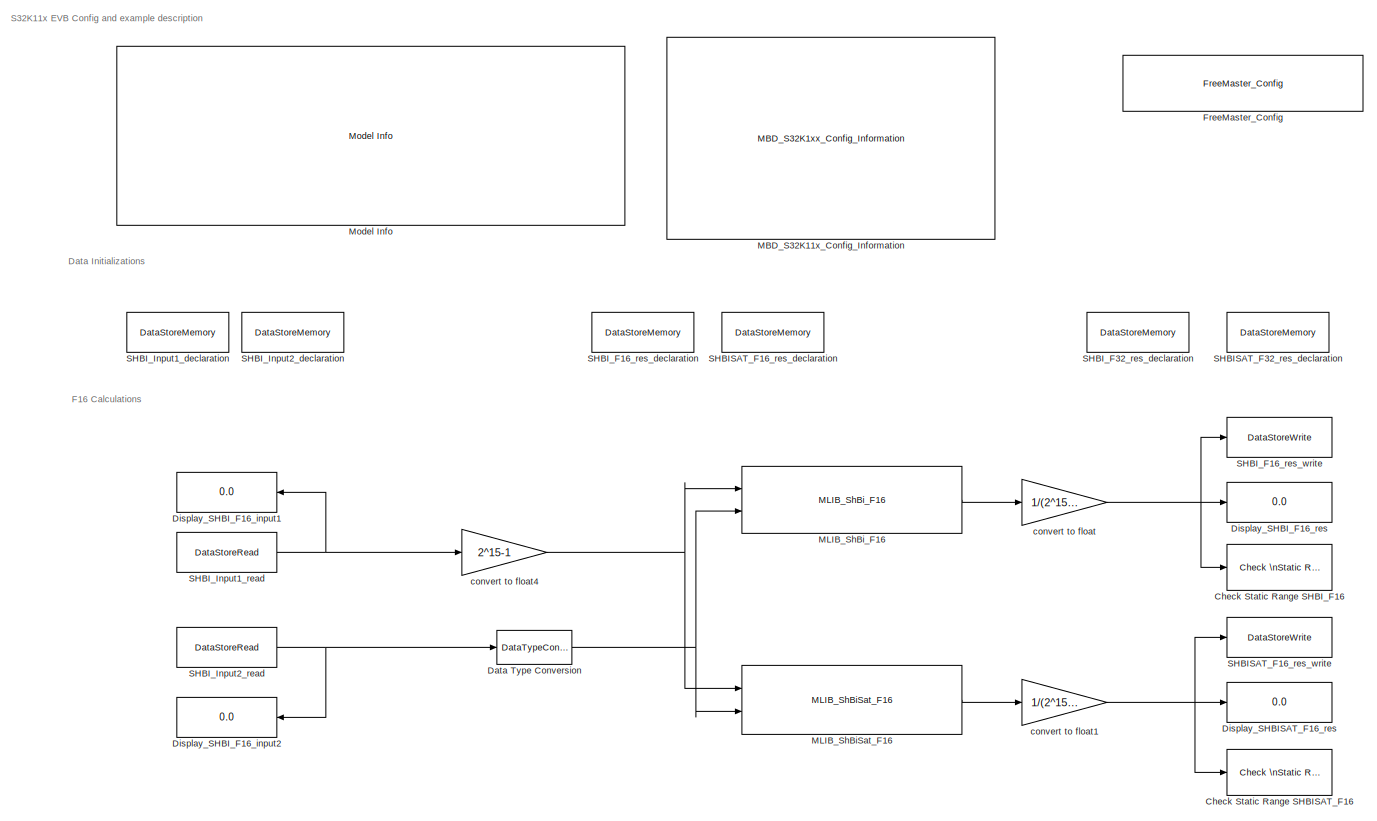
[diagram: root canvas - part 1/2, full width, middle band]
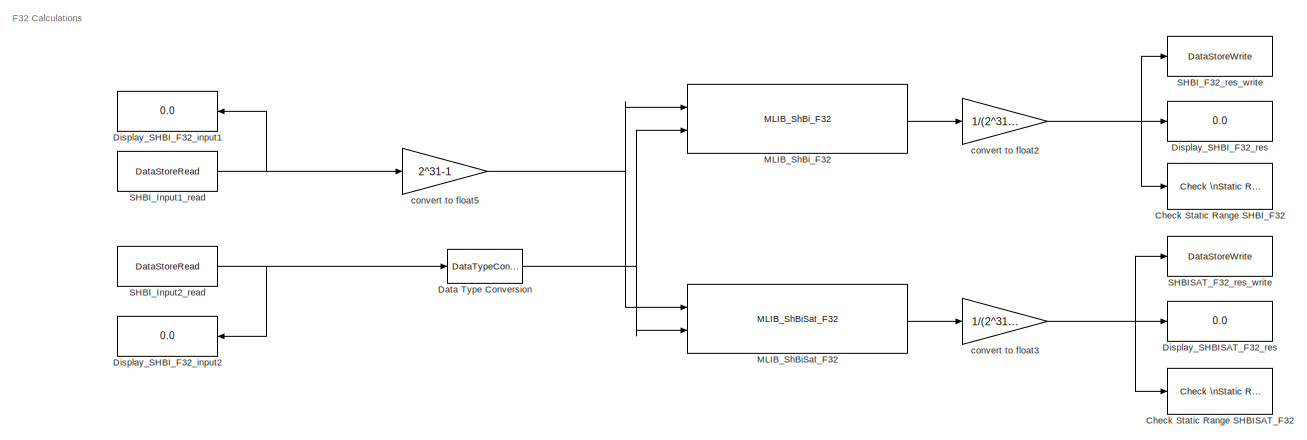
[diagram: root canvas - part 2/2, full width, bottom band]
MODEL ammclib_mlib_shbi_s32k11x
KIND model
CONFIG InitFcn = mbd_s32k_consistency_checks(bdroot(gcs));
BLOCK [Reference] Check Static Range SHBISAT_F16  REF=simulink/Model\nVerification/Check \nStatic Range
  Description = 0 <= u <= 0.2
  Ports = [1]
  SID = 590
  SourceBlock = simulink/Model\nVerification/Check \nStatic Range
  SourceProductBaseCode = SL
  SourceProductName = Simulink
  SourceType = Checks_SRange
  enabled = on
  export = off
  icon = graphic
  max = 0.2
  max_included = on
  min = 0
  min_included = on
  stopWhenAssertionFail = on
BLOCK [Reference] Check Static Range SHBISAT_F32    REF=simulink/Model\nVerification/Check \nStatic Range
  Description = 0 <= u <= 0.2
  Ports = [1]
  SID = 643
  SourceBlock = simulink/Model\nVerification/Check \nStatic Range
  SourceProductBaseCode = SL
  SourceProductName = Simulink
  SourceType = Checks_SRange
  enabled = on
  export = off
  icon = graphic
  max = 0.2
  max_included = on
  min = 0
  min_included = on
  stopWhenAssertionFail = on
BLOCK [Reference] Check Static Range SHBI_F16  REF=simulink/Model\nVerification/Check \nStatic Range
  Description = 0 <= u <= 0.2
  Ports = [1]
  SID = 585
  SourceBlock = simulink/Model\nVerification/Check \nStatic Range
  SourceProductBaseCode = SL
  SourceProductName = Simulink
  SourceType = Checks_SRange
  enabled = on
  export = off
  icon = graphic
  max = 0.2
  max_included = on
  min = 0
  min_included = on
  stopWhenAssertionFail = on
BLOCK [Reference] Check Static Range SHBI_F32   REF=simulink/Model\nVerification/Check \nStatic Range
  Description = 0 <= u <= 0.2
  Ports = [1]
  SID = 644
  SourceBlock = simulink/Model\nVerification/Check \nStatic Range
  SourceProductBaseCode = SL
  SourceProductName = Simulink
  SourceType = Checks_SRange
  enabled = on
  export = off
  icon = graphic
  max = 0.2
  max_included = on
  min = 0
  min_included = on
  stopWhenAssertionFail = on
BLOCK [DataTypeConversion] Data Type Conversion
  RndMeth = Floor
  SID = 691
  SaturateOnIntegerOverflow = off
BLOCK [DataTypeConversion] Data Type Conversion 
  RndMeth = Floor
  SID = 694
  SaturateOnIntegerOverflow = off
BLOCK [Display] Display_SHBISAT_F16_res
  Decimation = 1
  Format = long
  Ports = [1]
  SID = 591
BLOCK [Display] Display_SHBISAT_F32_res
  Decimation = 1
  Format = long
  Ports = [1]
  SID = 645
BLOCK [Display] Display_SHBI_F16_input1
  Decimation = 1
  Format = long
  Ports = [1]
  SID = 584
BLOCK [Display] Display_SHBI_F16_input2
  Decimation = 1
  Format = long
  Ports = [1]
  SID = 634
BLOCK [Display] Display_SHBI_F16_res
  Decimation = 1
  Format = long
  Ports = [1]
  SID = 579
BLOCK [Display] Display_SHBI_F32_input1
  Decimation = 1
  Format = long
  Ports = [1]
  SID = 646
BLOCK [Display] Display_SHBI_F32_input2 
  Decimation = 1
  Format = long
  Ports = [1]
  SID = 647
BLOCK [Display] Display_SHBI_F32_res
  Decimation = 1
  Format = long
  Ports = [1]
  SID = 648
BLOCK [Reference] FreeMaster_Config  REF=mbd_s32k1xx_ec_toolbox/Utility Blocks/FreeMaster_Config
  Ports = []
  SID = 699
  SourceBlock = mbd_s32k1xx_ec_toolbox/Utility Blocks/FreeMaster_Config
  SourceType = fm_s32k_config
  baudrate = 19200
  comm_buffer_size = 255
  comm_buffer_size_auto = on
  comm_rqueue_size = 32
  comm_rqueue_size_default = on
  interface = LPUART0
  isr_prio = 3
  max_rec_vars = 8
  max_scope_vars = 8
  mode = Short Interrupt
  rec_buff_size = 1024
  rec_timebase = 0
  rec_timebase_unit = seconds
  rxd = PTB0: [LPUART0_RX | Receive]
  show_adv_opts = on
  txd = PTB1: [LPUART0_TX | Transmit]
  use_recorder = on
  use_scope = on
BLOCK [Reference] MBD_S32K11x_Config_Information  REF=mbd_s32k1xx_ec_toolbox/MBD_S32K1xx_Config_Information
  ADC_PcrCheckEnDis = on
  AMMCLIB_PcrCheckEnDis = on
  CMP_PcrCheckEnDis = on
  CSEc_PcrCheckEnDis = on
  ConfigParams_PcrCheckEnDis = on
  FM_PcrCheckEnDis = on
  FTM_Dual_Edge_Inputs_PcrCheckEnDis = on
  FTM_Hall_Sensor_Inputs_PcrCheckEnDis = on
  FTM_Input_Edge_Inputs_PcrCheckEnDis = on
  FTM_PWM_PcrCheckEnDis = on
  FTM_Quadrature_Inputs_PcrCheckEnDis = on
  FlexCAN_PcrCheckEnDis = on
  FlexIO_PcrCheckEnDis = on
  GPIO_InputPcrCheckEnDis = on
  GPIO_OutputPcrCheckEnDis = on
  LIN_PcrCheckEnDis = on
  LPI2C_PcrCheckEnDis = on
  LPSPI_PcrCheckEnDis = on
  LPTMR_PcrCheckEnDis = on
  LPUART_PcrCheckEnDis = on
  ModelRef_PcrCheckEnDis = on
  PDB0_PcrCheckEnDis = on
  PIT_PcrCheckEnDis = on
  Ports = []
  Profile_PcrCheckEnDis = on
  RTC_PcrCheckEnDis = on
  SBC_PcrCheckEnDis = on
  SID = 695
  SourceBlock = mbd_s32k1xx_ec_toolbox/MBD_S32K1xx_Config_Information
  SourceType = MBDTBX_EC_S32K
  WDOG_PcrCheckEnDis = on
  config_params = []
  disp_str = Target : S32K144-64KB_SRAM\nPackage : 100-pin\nSystem clock : 80 MHz\nXTAL clock : External 8 MHz\nCompiler : IAR\nTarget Type : FLASH\nDownload Code after build : off\nStep Tick Interrupt Priority : 15
  ds_import_enable = on
  eDMA_PcrCheckEnDis = on
  gcc_target_assemble_opts = -mcpu=cortex-m0plus -mthumb -g
  gcc_target_compile_opts = -mcpu=cortex-m0plus -mthumb -O1 -g -gstrict-dwarf
  gcc_target_default_lcf = on
  gcc_target_link_opts = -mcpu=cortex-m0plus -mthumb
  gcc_target_user_lcf = S32K116_17_flash.ld
  ghs_target_assemble_opts = -mcpu=cortexm0plus -mthumb -fsoft --gnu_asm
  ghs_target_compile_opts = -mcpu=cortexm0plus -mthumb -fsoft -Ogeneral -Wundef -Wimplicit-int -Wshadow -Wtrigraphs --no_commons --gnu_asm -gnu99 -gdwarf-2 -G
  ghs_target_default_lcf = on
  ghs_target_link_opts = -mcpu=cortexm0plus -mthumb -fsoft
  ghs_target_user_lcf = S32K116_17_flash.ld
  iar_target_assemble_opts = --thumb
  iar_target_compile_opts = --thumb -Ol -e --debug --dlib_config normal
  iar_target_default_lcf = on
  iar_target_link_opts = --no_exceptions --vfe --inline
  iar_target_user_lcf = S32K116_17_flash.icf
  mbdt_ver = 0
  mcu_steptick_prio = 3
  mcu_steptick_timer = LPIT Channel 0
  mcu_system_clock_freq = 40
  mcu_target_name = S32K116
  mcu_target_package = 48-LQFP
  mcu_target_sram_size = 17KB
  mcu_xtal_freq = External 40
  pil_download_enable = off
  pil_download_rate = 57600
  pil_opensda_drive = Custom
  pil_opensda_drive_custom = D
  pil_uart_instance = 0
  pil_uart_rx = PTB0: [LPUART0_RX | Receive]
  pil_uart_tx = PTB1: [LPUART0_TX | Transmit]
  rbl_com_port = Custom
  rbl_com_port_custom = COM1
  rbl_download_enable = on
  rbl_download_interface = OpenSDA
  rbl_restart_request = off
  rbl_start_delay = 5000
  target_compiler = GCC
  target_memory = FLASH
BLOCK [Reference] MLIB_ShBiSat_F16  REF=ammclib_bam_s32k11x/MLIB/bam_f16/MLIB_ShBiSat_F16  (lib defined in mdl_5e542557caf3)
  Ports = [2, 1]
  SID = 689
  SourceBlock = ammclib_bam_s32k11x/MLIB/bam_f16/MLIB_ShBiSat_F16
  SourceType = MLIB_ShBiSat_F16
BLOCK [Reference] MLIB_ShBiSat_F32  REF=ammclib_bam_s32k11x/MLIB/bam_f32/MLIB_ShBiSat_F32  (lib defined in mdl_5e542557caf3)
  Ports = [2, 1]
  SID = 693
  SourceBlock = ammclib_bam_s32k11x/MLIB/bam_f32/MLIB_ShBiSat_F32
  SourceType = MLIB_ShBiSat_F32
BLOCK [Reference] MLIB_ShBi_F16  REF=ammclib_bam_s32k11x/MLIB/bam_f16/MLIB_ShBi_F16  (lib defined in mdl_5e542557caf3)
  Ports = [2, 1]
  SID = 688
  SourceBlock = ammclib_bam_s32k11x/MLIB/bam_f16/MLIB_ShBi_F16
  SourceType = MLIB_ShBi_F16
BLOCK [Reference] MLIB_ShBi_F32  REF=ammclib_bam_s32k11x/MLIB/bam_f32/MLIB_ShBi_F32  (lib defined in mdl_5e542557caf3)
  Ports = [2, 1]
  SID = 692
  SourceBlock = ammclib_bam_s32k11x/MLIB/bam_f32/MLIB_ShBi_F32
  SourceType = MLIB_ShBi_F32
BLOCK [Reference] Model Info  REF=simulink/Model-Wide\nUtilities/Model Info
  DisplayStringWithTags = Model Name: %<ModelName>\n\nDescription: %<Description>
  Frame = off
  HorizontalTextAlignment = Left
  LeftAlignmentValue = 0.02
  MaskDisplayString = Model Name: ammclib_mlib_shbi_s32k11x\\n\\nDescription: This model tests the AMMCLIB MLIB SHBI blocks\\n\\nValidation:\\n- Run the model in Simulation and compare the Inputs vs Outputs results.\\n- Open Freemaster (ammclib_mlib_shbi_s32k11x.pmp) and compare the HW results against the Simulated ones
  Ports = []
  SID = 524
  SourceBlock = simulink/Model-Wide\nUtilities/Model Info
  SourceProductBaseCode = SL
  SourceProductName = Simulink
  SourceType = CMBlock
BLOCK [DataStoreMemory] SHBISAT_F16_res_declaration
  DataStoreName = SHBISAT_F16_res
  OutDataTypeStr = single
  Priority = 3
  ReadBeforeWriteMsg = warning
  SID = 588
  ShowAdditionalParam = off
  WriteAfterReadMsg = warning
  WriteAfterWriteMsg = warning
BLOCK [DataStoreWrite] SHBISAT_F16_res_write
  DataStoreName = SHBISAT_F16_res
  Ports = [1]
  SID = 589
BLOCK [DataStoreMemory] SHBISAT_F32_res_declaration
  DataStoreName = SHBISAT_F32_res
  OutDataTypeStr = single
  Priority = 3
  ReadBeforeWriteMsg = warning
  SID = 611
  ShowAdditionalParam = off
  WriteAfterReadMsg = warning
  WriteAfterWriteMsg = warning
BLOCK [DataStoreWrite] SHBISAT_F32_res_write
  DataStoreName = SHBISAT_F32_res
  Ports = [1]
  SID = 639
BLOCK [DataStoreMemory] SHBI_F16_res_declaration
  DataStoreName = SHBI_F16_res
  OutDataTypeStr = single
  Priority = 2
  ReadBeforeWriteMsg = warning
  SID = 580
  ShowAdditionalParam = off
  WriteAfterReadMsg = warning
  WriteAfterWriteMsg = warning
BLOCK [DataStoreWrite] SHBI_F16_res_write
  DataStoreName = SHBI_F16_res
  Ports = [1]
  SID = 581
BLOCK [DataStoreMemory] SHBI_F32_res_declaration
  DataStoreName = SHBI_F32_res
  OutDataTypeStr = single
  Priority = 2
  ReadBeforeWriteMsg = warning
  SID = 610
  ShowAdditionalParam = off
  WriteAfterReadMsg = warning
  WriteAfterWriteMsg = warning
BLOCK [DataStoreWrite] SHBI_F32_res_write
  DataStoreName = SHBI_F32_res
  Ports = [1]
  SID = 640
BLOCK [DataStoreMemory] SHBI_Input1_declaration
  DataStoreName = SHBI_Input1
  InitialValue = 0.25
  OutDataTypeStr = single
  OutMax = 1
  OutMin = -1
  Priority = 1
  SID = 582
  ShowAdditionalParam = off
  WriteAfterReadMsg = warning
  WriteAfterWriteMsg = warning
BLOCK [DataStoreRead] SHBI_Input1_read
  DataStoreName = SHBI_Input1
  Ports = [0, 1]
  SID = 583
BLOCK [DataStoreRead] SHBI_Input1_read 
  DataStoreName = SHBI_Input1
  Ports = [0, 1]
  SID = 641
BLOCK [DataStoreMemory] SHBI_Input2_declaration
  DataStoreName = SHBI_Input2
  InitialValue = -1
  OutDataTypeStr = single
  OutMax = 32
  OutMin = -32
  Priority = 1
  SID = 632
  ShowAdditionalParam = off
  WriteAfterReadMsg = warning
  WriteAfterWriteMsg = warning
BLOCK [DataStoreRead] SHBI_Input2_read
  DataStoreName = SHBI_Input2
  Ports = [0, 1]
  SID = 633
BLOCK [DataStoreRead] SHBI_Input2_read 
  DataStoreName = SHBI_Input2
  Ports = [0, 1]
  SID = 642
BLOCK [Gain] convert to float
  Gain = 1/(2^15-1)
  OutDataTypeStr = Inherit: Inherit via back propagation
  ParamDataTypeStr = Inherit: Inherit via internal rule
  SID = 578
  SaturateOnIntegerOverflow = off
BLOCK [Gain] convert to float1
  Gain = 1/(2^15-1)
  OutDataTypeStr = Inherit: Inherit via back propagation
  ParamDataTypeStr = Inherit: Inherit via internal rule
  SID = 587
  SaturateOnIntegerOverflow = off
BLOCK [Gain] convert to float2
  Gain = 1/(2^31-1)
  OutDataTypeStr = Inherit: Inherit via back propagation
  ParamDataTypeStr = Inherit: Inherit via internal rule
  SID = 653
  SaturateOnIntegerOverflow = off
BLOCK [Gain] convert to float3
  Gain = 1/(2^31-1)
  OutDataTypeStr = Inherit: Inherit via back propagation
  ParamDataTypeStr = Inherit: Inherit via internal rule
  SID = 654
  SaturateOnIntegerOverflow = off
BLOCK [Gain] convert to float4
  Gain = 2^15-1
  OutDataTypeStr = Inherit: Inherit via back propagation
  ParamDataTypeStr = Inherit: Inherit via internal rule
  SID = 697
  SaturateOnIntegerOverflow = off
BLOCK [Gain] convert to float5
  Gain = 2^31-1
  OutDataTypeStr = Inherit: Inherit via back propagation
  ParamDataTypeStr = Inherit: Inherit via internal rule
  SID = 698
  SaturateOnIntegerOverflow = off
ANNOTATION (root): Data Initializations
ANNOTATION (root): F16 Calculations
ANNOTATION (root): F32 Calculations
ANNOTATION (root): S32K11x EVB Config and example description
NET Data Type Conversion :1 -> MLIB_ShBiSat_F32:2, MLIB_ShBi_F32:2
NET Data Type Conversion:1 -> MLIB_ShBiSat_F16:2, MLIB_ShBi_F16:2
LINE MLIB_ShBiSat_F16:1 -> convert to float1:1
LINE MLIB_ShBiSat_F32:1 -> convert to float3:1
LINE MLIB_ShBi_F16:1 -> convert to float:1
LINE MLIB_ShBi_F32:1 -> convert to float2:1
NET SHBI_Input1_read :1 -> Display_SHBI_F32_input1:1, convert to float5:1
NET SHBI_Input1_read:1 -> Display_SHBI_F16_input1:1, convert to float4:1
NET SHBI_Input2_read :1 -> Data Type Conversion :1, Display_SHBI_F32_input2 :1
NET SHBI_Input2_read:1 -> Data Type Conversion:1, Display_SHBI_F16_input2:1
NET convert to float1:1 -> Check Static Range SHBISAT_F16:1, Display_SHBISAT_F16_res:1, SHBISAT_F16_res_write:1
NET convert to float2:1 -> Check Static Range SHBI_F32 :1, Display_SHBI_F32_res:1, SHBI_F32_res_write:1
NET convert to float3:1 -> Check Static Range SHBISAT_F32  :1, Display_SHBISAT_F32_res:1, SHBISAT_F32_res_write:1
NET convert to float4:1 -> MLIB_ShBiSat_F16:1, MLIB_ShBi_F16:1
NET convert to float5:1 -> MLIB_ShBiSat_F32:1, MLIB_ShBi_F32:1
NET convert to float:1 -> Check Static Range SHBI_F16:1, Display_SHBI_F16_res:1, SHBI_F16_res_write:1
note: NET lines group one-source signal fan-out (src -> all destinations, sorted); 1:1 wires keep LINE
